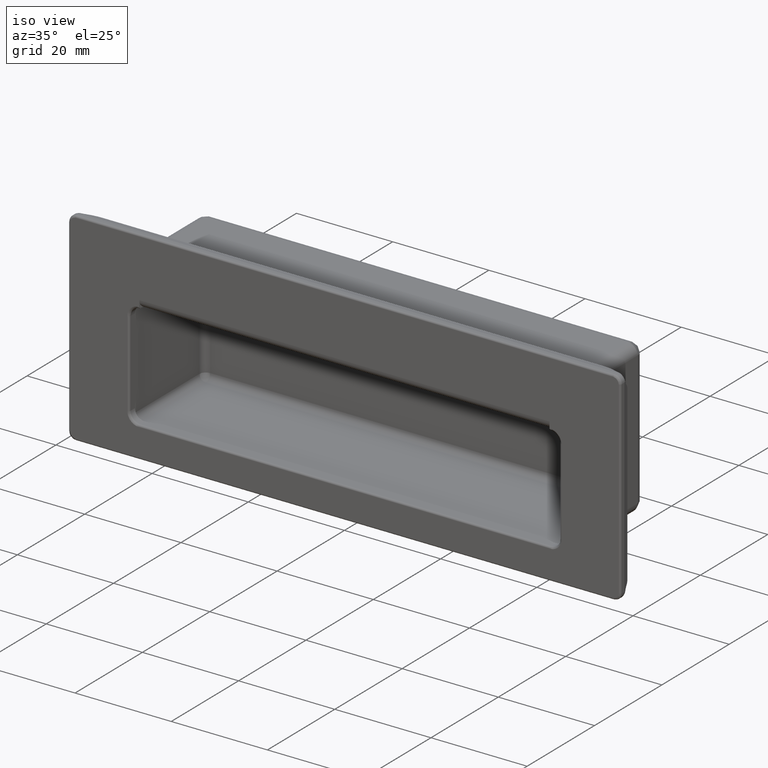
[diagram: clean part render]
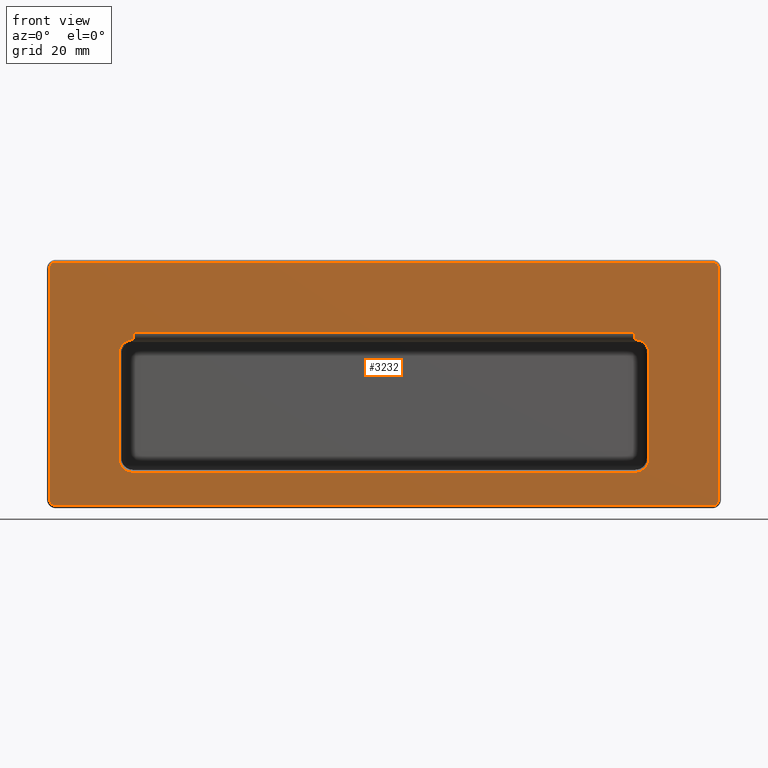
[diagram: tour spotlight — one face highlighted and labeled with its STEP entity id]
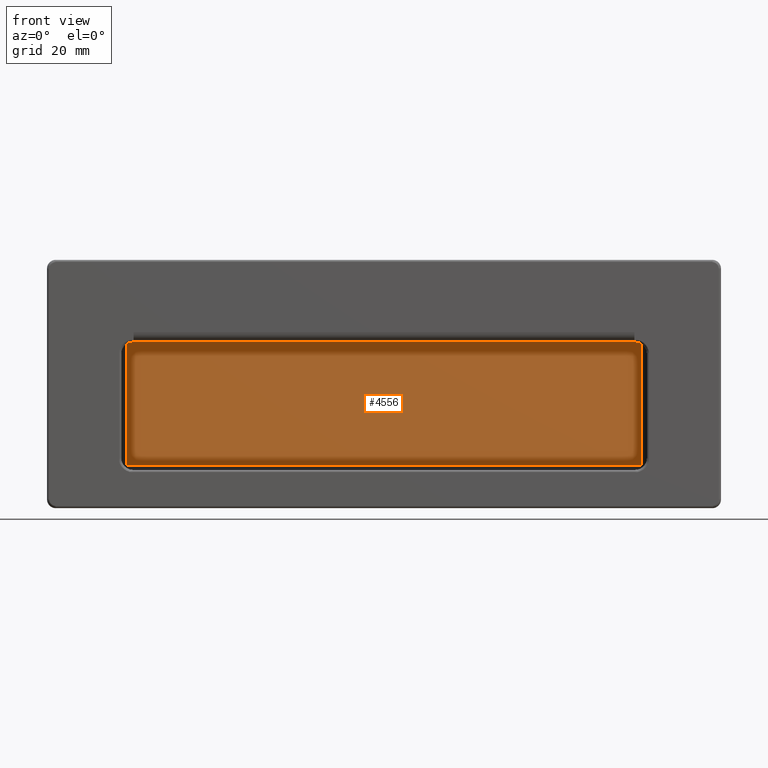
[diagram: tour spotlight — one face highlighted and labeled with its STEP entity id]
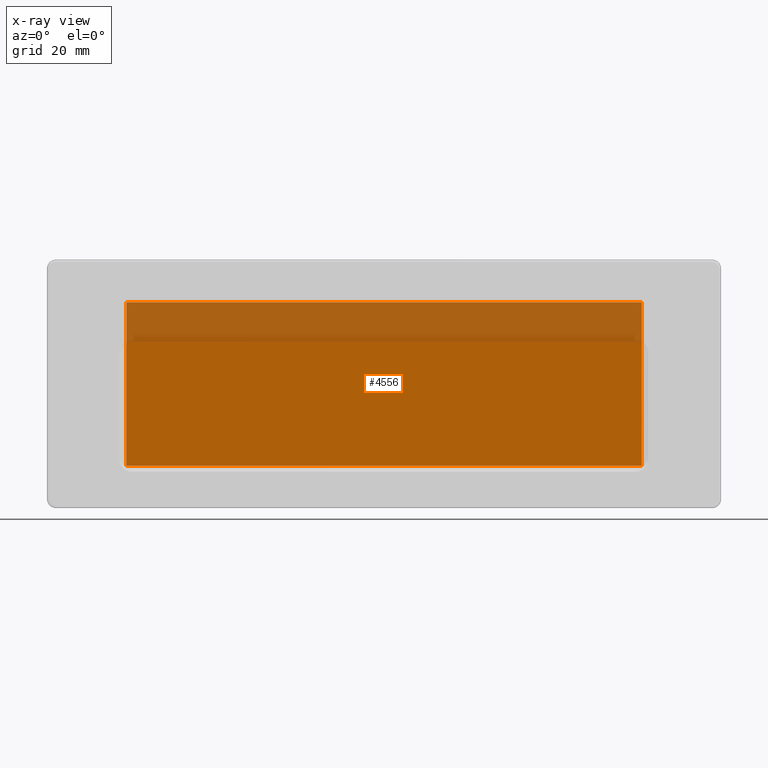
[diagram: x-ray of the same camera — body ghosted, this tour face saturated]
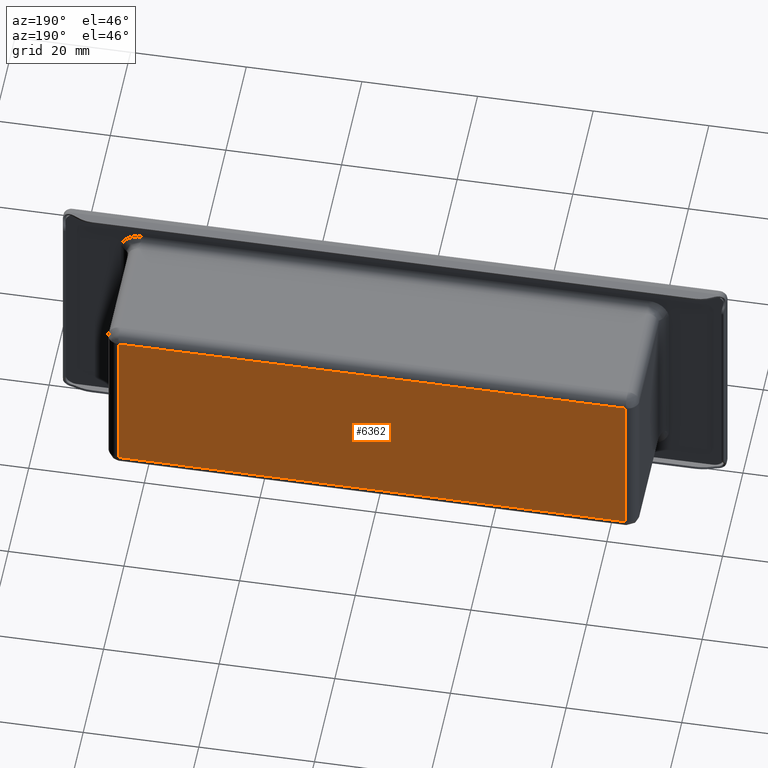
[diagram: tour spotlight — one face highlighted and labeled with its STEP entity id]
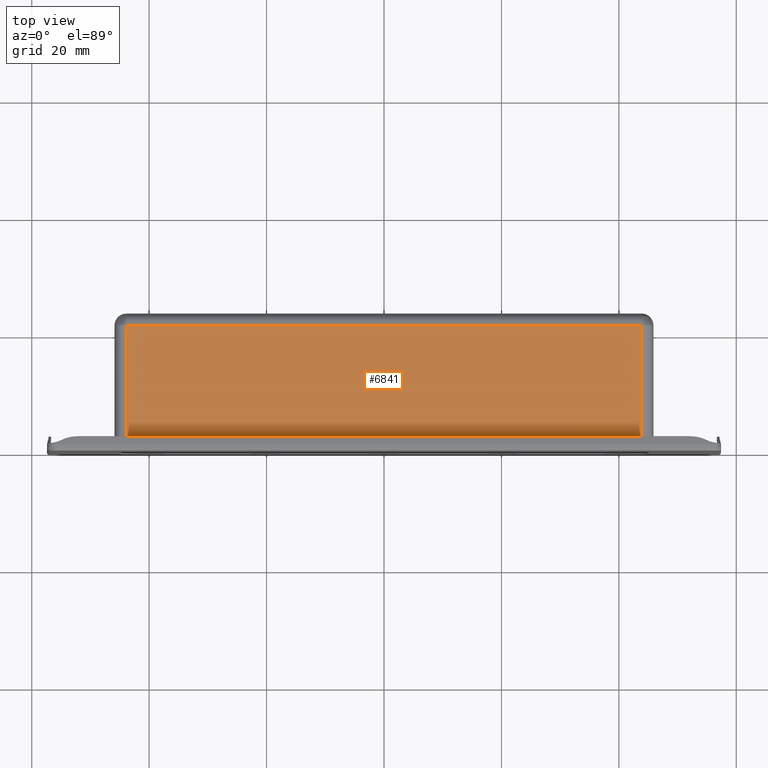
[diagram: tour spotlight — one face highlighted and labeled with its STEP entity id]
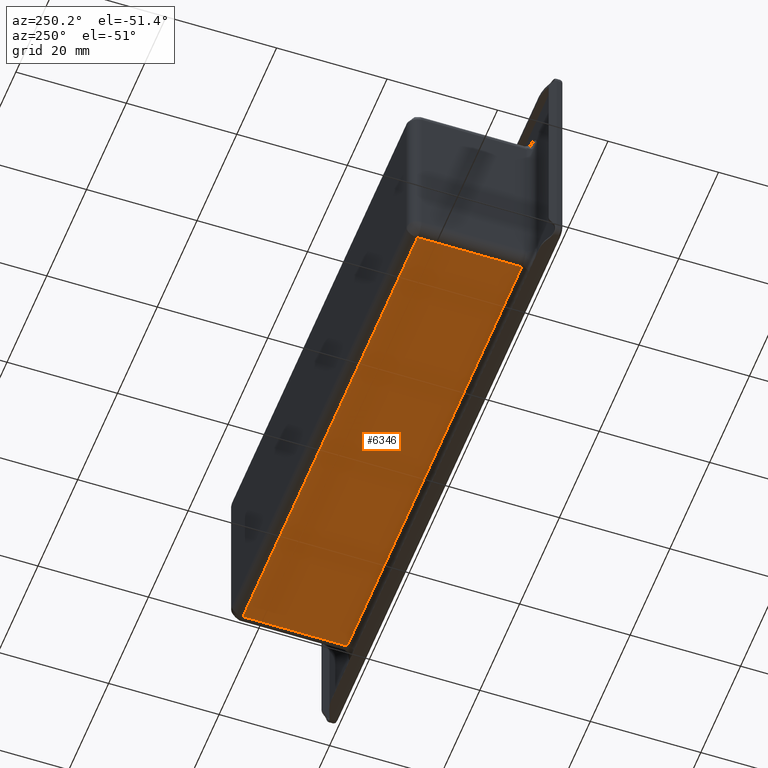
[diagram: tour spotlight — one face highlighted and labeled with its STEP entity id]
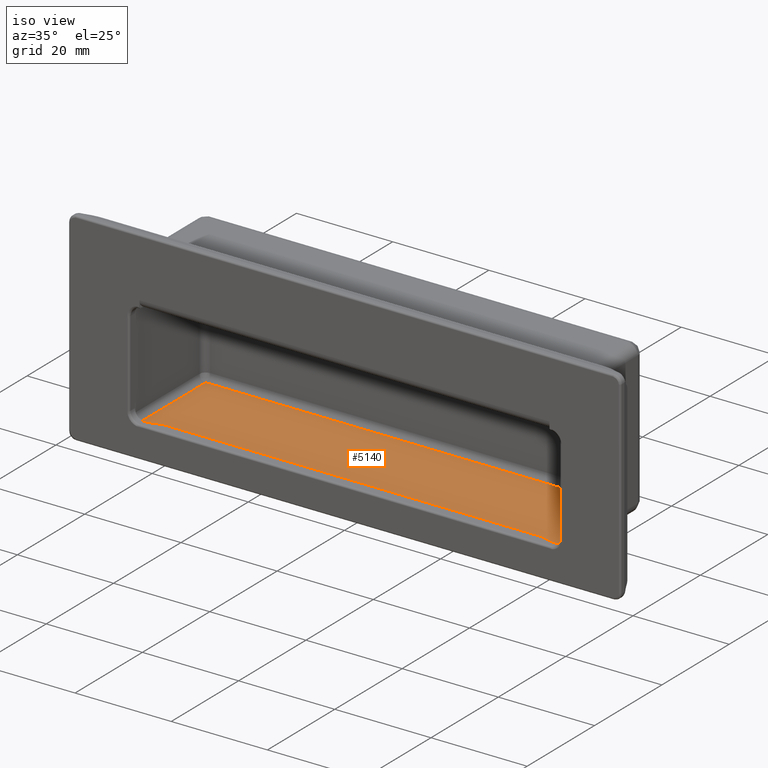
[diagram: tour spotlight — one face highlighted and labeled with its STEP entity id]
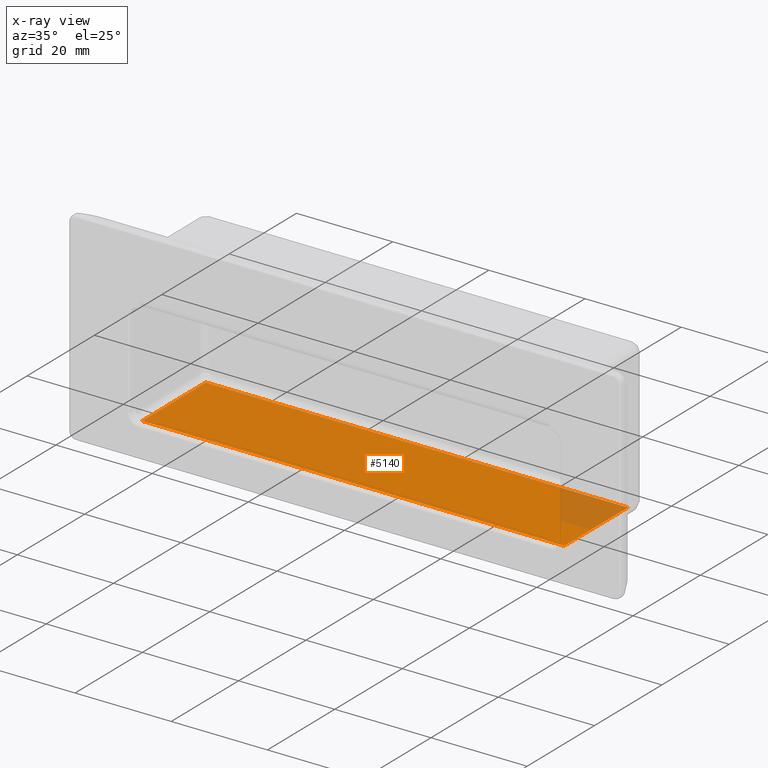
[diagram: x-ray of the same camera — body ghosted, this tour face saturated]
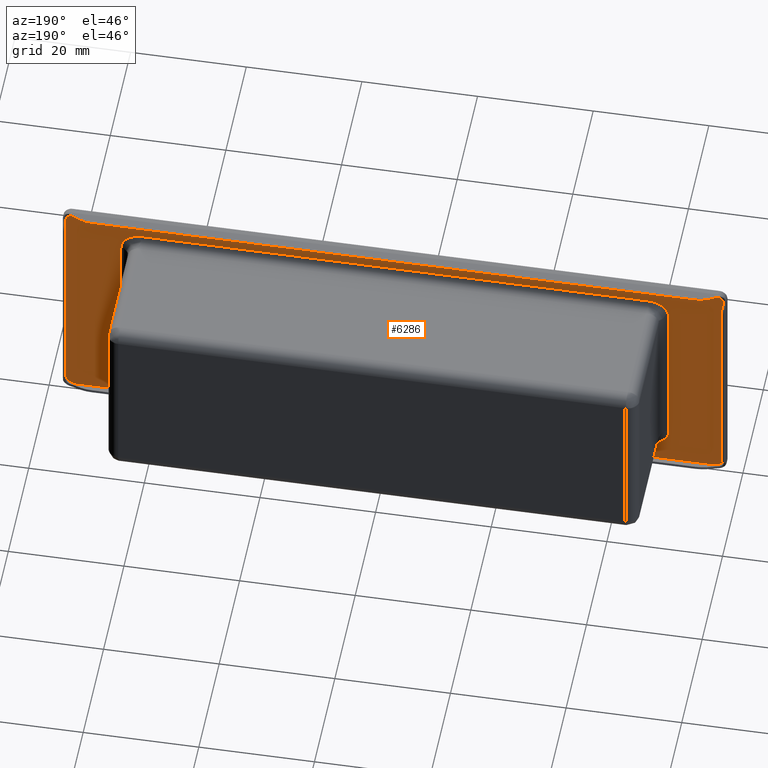
[diagram: tour spotlight — one face highlighted and labeled with its STEP entity id]
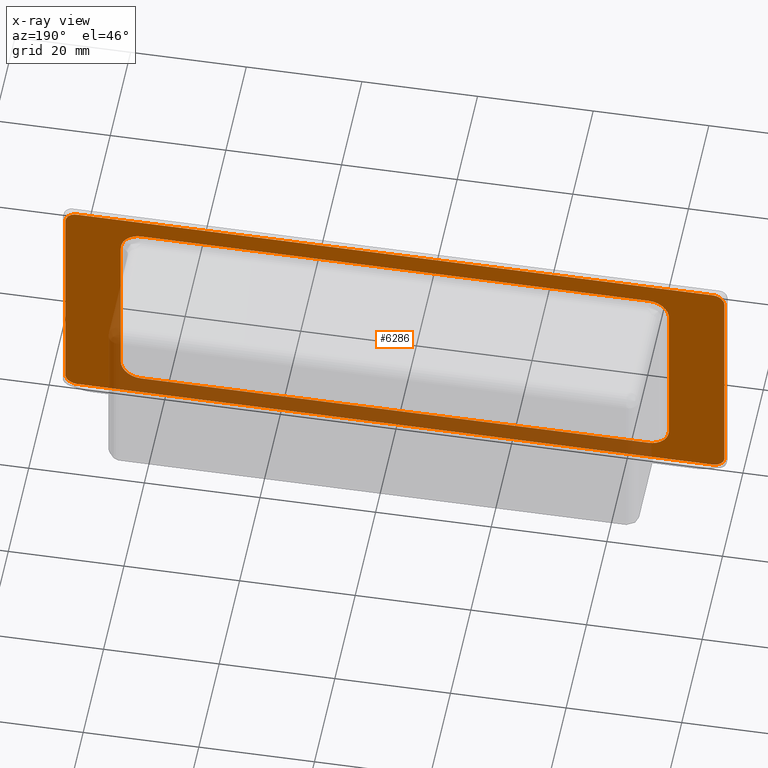
[diagram: x-ray of the same camera — body ghosted, this tour face saturated]
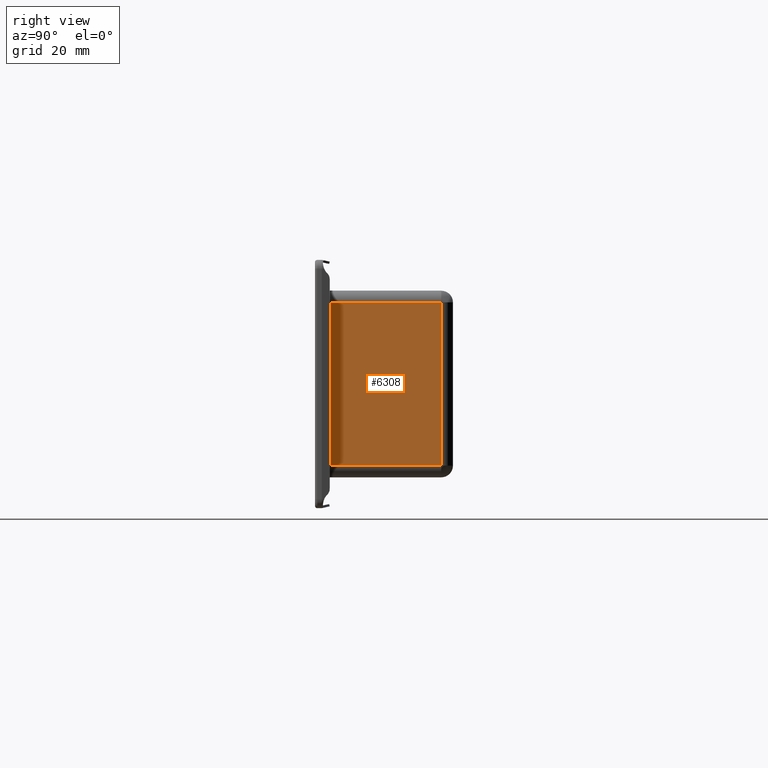
[diagram: tour spotlight — one face highlighted and labeled with its STEP entity id]
A machine part: a face-by-face anatomy tour. The part has 177 B-rep faces; the first image is the clean iso view, then the 8 largest visible faces are spotlighted one at a time (largest first), each with its STEP entity span.

Face 1 — front view, entity #3232. In plain terms, the highlighted face is a freeform B-spline surface patch.
Definition (entity closure, byte-faithful):
#2022=CARTESIAN_POINT('',(55.899999999999999,0.0,-20.750000000000000));
#2023=VERTEX_POINT('',#2022);
#2035=CARTESIAN_POINT('',(57.0,0.0,-19.649999999999999));
#2036=VERTEX_POINT('',#2035);
#2047=CARTESIAN_POINT('',(55.899999999999999,0.0,-20.750000000000000));
#2048=CARTESIAN_POINT('',(56.089117631571312,0.0,-20.750433314237011));
#2049=CARTESIAN_POINT('',(56.367540630138187,0.0,-20.676269434872349));
#2050=CARTESIAN_POINT('',(56.717278364057449,0.0,-20.416964149721991));
#2051=CARTESIAN_POINT('',(56.940908035953150,0.0,-20.090912642356511));
#2052=CARTESIAN_POINT('',(57.000138124218083,0.0,-19.793999895413432));
#2053=CARTESIAN_POINT('',(57.0,0.0,-19.649999999999999));
#2054=B_SPLINE_CURVE_WITH_KNOTS('',3,(#2047,#2048,#2049,#2050,#2051,#2052,#2053),.UNSPECIFIED.,.F.,.U.,(4,1,1,1,4),(0.000000308004281,0.566985345708550,0.837006731466796,1.295939566123076,1.727919318831558),.UNSPECIFIED.);
#2055=EDGE_CURVE('',#2023,#2036,#2054,.T.);
#2074=CARTESIAN_POINT('',(57.0,0.0,19.649999999999999));
#2075=VERTEX_POINT('',#2074);
#2085=CARTESIAN_POINT('',(57.0,0.0,-19.649999999999999));
#2086=CARTESIAN_POINT('',(57.0,0.0,19.649999999999999));
#2087=QUASI_UNIFORM_CURVE('',1,(#2085,#2086),.UNSPECIFIED.,.F.,.U.);
#2088=EDGE_CURVE('',#2036,#2075,#2087,.T.);
#2109=CARTESIAN_POINT('',(-55.899999999999999,0.0,-20.750000000000000));
#2110=VERTEX_POINT('',#2109);
#2123=CARTESIAN_POINT('',(-55.899999999999999,0.0,-20.750000000000000));
#2124=CARTESIAN_POINT('',(55.899999999999999,0.0,-20.750000000000000));
#2125=QUASI_UNIFORM_CURVE('',1,(#2123,#2124),.UNSPECIFIED.,.F.,.U.);
#2126=EDGE_CURVE('',#2110,#2023,#2125,.T.);
#2148=CARTESIAN_POINT('',(55.899999999999999,0.0,20.750000000000000));
#2149=VERTEX_POINT('',#2148);
#2160=CARTESIAN_POINT('',(57.0,0.0,19.649999999999999));
#2161=CARTESIAN_POINT('',(57.000307429897362,0.0,19.821064582480648));
#2162=CARTESIAN_POINT('',(56.935706552464957,0.0,20.090708563502339));
#2163=CARTESIAN_POINT('',(56.704489525484838,0.0,20.427758687049550));
#2164=CARTESIAN_POINT('',(56.376753224023197,0.0,20.677182233565819));
#2165=CARTESIAN_POINT('',(56.071033860356458,0.0,20.750299359066151));
#2166=CARTESIAN_POINT('',(55.899999999999999,0.0,20.750000000000000));
#2167=B_SPLINE_CURVE_WITH_KNOTS('',3,(#2160,#2161,#2162,#2163,#2164,#2165,#2166),.UNSPECIFIED.,.F.,.U.,(4,1,1,1,4),(0.000000307997191,0.512985134664143,0.809984527379207,1.214935017076155,1.727919318831545),.UNSPECIFIED.);
#2168=EDGE_CURVE('',#2075,#2149,#2167,.T.);
#2192=CARTESIAN_POINT('',(-57.0,0.0,-19.649999999999999));
#2193=VERTEX_POINT('',#2192);
#2205=CARTESIAN_POINT('',(-57.0,0.0,-19.649999999999999));
#2206=CARTESIAN_POINT('',(-57.000307429897362,0.0,-19.821064582480648));
#2207=CARTESIAN_POINT('',(-56.935706552464957,0.0,-20.090708563502339));
#2208=CARTESIAN_POINT('',(-56.704489525484838,0.0,-20.427758687049550));
#2209=CARTESIAN_POINT('',(-56.376753224023197,0.0,-20.677182233565819));
#2210=CARTESIAN_POINT('',(-56.071033860356458,0.0,-20.750299359066151));
#2211=CARTESIAN_POINT('',(-55.899999999999999,0.0,-20.750000000000000));
#2212=B_SPLINE_CURVE_WITH_KNOTS('',3,(#2205,#2206,#2207,#2208,#2209,#2210,#2211),.UNSPECIFIED.,.F.,.U.,(4,1,1,1,4),(0.000000307997191,0.512985134664143,0.809984527379207,1.214935017076155,1.727919318831545),.UNSPECIFIED.);
#2213=EDGE_CURVE('',#2193,#2110,#2212,.T.);
#2232=CARTESIAN_POINT('',(-55.899999999999999,0.0,20.750000000000000));
#2233=VERTEX_POINT('',#2232);
#2244=CARTESIAN_POINT('',(55.899999999999999,0.0,20.750000000000000));
#2245=CARTESIAN_POINT('',(-55.899999999999999,0.0,20.750000000000000));
#2246=QUASI_UNIFORM_CURVE('',1,(#2244,#2245),.UNSPECIFIED.,.F.,.U.);
#2247=EDGE_CURVE('',#2149,#2233,#2246,.T.);
#2268=CARTESIAN_POINT('',(-57.0,0.0,19.649999999999999));
#2269=VERTEX_POINT('',#2268);
#2281=CARTESIAN_POINT('',(-57.0,0.0,19.649999999999999));
#2282=CARTESIAN_POINT('',(-57.0,0.0,-19.649999999999999));
#2283=QUASI_UNIFORM_CURVE('',1,(#2281,#2282),.UNSPECIFIED.,.F.,.U.);
#2284=EDGE_CURVE('',#2269,#2193,#2283,.T.);
#2309=CARTESIAN_POINT('',(-55.899999999999999,0.0,20.750000000000000));
#2310=CARTESIAN_POINT('',(-56.089117631571312,0.0,20.750433314237011));
#2311=CARTESIAN_POINT('',(-56.367540630138187,0.0,20.676269434872349));
#2312=CARTESIAN_POINT('',(-56.717278364057449,0.0,20.416964149721991));
#2313=CARTESIAN_POINT('',(-56.940908035953150,0.0,20.090912642356511));
#2314=CARTESIAN_POINT('',(-57.000138124218083,0.0,19.793999895413432));
#2315=CARTESIAN_POINT('',(-57.0,0.0,19.649999999999999));
#2316=B_SPLINE_CURVE_WITH_KNOTS('',3,(#2309,#2310,#2311,#2312,#2313,#2314,#2315),.UNSPECIFIED.,.F.,.U.,(4,1,1,1,4),(0.000000308004281,0.566985345708550,0.837006731466796,1.295939566123076,1.727919318831558),.UNSPECIFIED.);
#2317=EDGE_CURVE('',#2233,#2269,#2316,.T.);
#2336=CARTESIAN_POINT('',(45.150000000000013,0.0,5.149999999999920));
#2337=VERTEX_POINT('',#2336);
#2349=CARTESIAN_POINT('',(45.150000000000013,0.0,-12.650000000000000));
#2350=VERTEX_POINT('',#2349);
#2361=CARTESIAN_POINT('',(45.150000000000013,0.0,5.149999999999920));
#2362=CARTESIAN_POINT('',(45.150000000000013,0.0,-12.650000000000000));
#2363=QUASI_UNIFORM_CURVE('',1,(#2361,#2362),.UNSPECIFIED.,.F.,.U.);
#2364=EDGE_CURVE('',#2337,#2350,#2363,.T.);
#2392=CARTESIAN_POINT('',(42.750000000000000,0.0,7.550000000000001));
#2393=VERTEX_POINT('',#2392);
#2406=CARTESIAN_POINT('',(42.750000000000000,0.0,7.550000000000001));
#2407=CARTESIAN_POINT('',(43.083888179151593,0.0,7.550449087050339));
#2408=CARTESIAN_POINT('',(43.554760978457907,0.0,7.450063618920219));
#2409=CARTESIAN_POINT('',(44.124476248130136,0.0,7.136352301698945));
#2410=CARTESIAN_POINT('',(44.502396790240873,0.0,6.818425584114021));
#2411=CARTESIAN_POINT('',(44.777476214870390,0.0,6.456814715542434));
#2412=CARTESIAN_POINT('',(45.058454921049062,0.0,5.915512899174033));
#2413=CARTESIAN_POINT('',(45.150434163107839,0.0,5.483890351393451));
#2414=CARTESIAN_POINT('',(45.150000000000013,0.0,5.149999999999920));
#2415=B_SPLINE_CURVE_WITH_KNOTS('',3,(#2406,#2407,#2408,#2409,#2410,#2411,#2412,#2413,#2414),.UNSPECIFIED.,.F.,.U.,(4,1,1,1,1,1,4),(0.000000206949084,1.001409892601652,1.413779364648870,1.943881405310106,2.474054548191452,2.768596356997216,3.770005786415681),.UNSPECIFIED.);
#2416=EDGE_CURVE('',#2393,#2337,#2415,.T.);
#2435=CARTESIAN_POINT('',(42.636537860952302,0.0,7.550000000000001));
#2436=VERTEX_POINT('',#2435);
#2449=CARTESIAN_POINT('',(42.636537860952302,0.0,7.550000000000001));
#2450=CARTESIAN_POINT('',(42.750000000000000,0.0,7.550000000000001));
#2451=QUASI_UNIFORM_CURVE('',1,(#2449,#2450),.UNSPECIFIED.,.F.,.U.);
#2452=EDGE_CURVE('',#2436,#2393,#2451,.T.);
#2552=CARTESIAN_POINT('',(42.636537860952302,-1.127570E-014,8.850000000000000));
#2553=VERTEX_POINT('',#2552);
#2554=CARTESIAN_POINT('',(42.636537860952302,-1.127570E-014,8.850000000000000));
#2555=CARTESIAN_POINT('',(42.636537860952302,0.0,7.550000000000001));
#2556=QUASI_UNIFORM_CURVE('',1,(#2554,#2555),.UNSPECIFIED.,.F.,.U.);
#2557=EDGE_CURVE('',#2553,#2436,#2556,.T.);
#3136=CARTESIAN_POINT('',(-62.694299779045892,0.0,22.822924919564951));
#3137=CARTESIAN_POINT('',(62.694302836764173,0.0,22.822924919564951));
#3138=CARTESIAN_POINT('',(-62.694299779045892,0.0,-22.822926032681689));
#3139=CARTESIAN_POINT('',(62.694302836764173,0.0,-22.822926032681689));
#3140=B_SPLINE_SURFACE_WITH_KNOTS('',1,1,((#3136,#3138),(#3137,#3139)),.UNSPECIFIED.,.F.,.F.,.U.,(2,2),(2,2),(0.0,125.388602615810000),(0.0,45.645850952246633),.UNSPECIFIED.);
#3141=ORIENTED_EDGE('',*,*,#2126,.T.);
#3142=ORIENTED_EDGE('',*,*,#2055,.T.);
#3143=ORIENTED_EDGE('',*,*,#2088,.T.);
#3144=ORIENTED_EDGE('',*,*,#2168,.T.);
#3145=ORIENTED_EDGE('',*,*,#2247,.T.);
#3146=ORIENTED_EDGE('',*,*,#2317,.T.);
#3147=ORIENTED_EDGE('',*,*,#2284,.T.);
#3148=ORIENTED_EDGE('',*,*,#2213,.T.);
#3149=EDGE_LOOP('',(#3141,#3142,#3143,#3144,#3145,#3146,#3147,#3148));
#3150=FACE_OUTER_BOUND('',#3149,.T.);
#3151=ORIENTED_EDGE('',*,*,#2557,.T.);
#3152=ORIENTED_EDGE('',*,*,#2452,.T.);
#3153=ORIENTED_EDGE('',*,*,#2416,.T.);
#3154=ORIENTED_EDGE('',*,*,#2364,.T.);
#3155=CARTESIAN_POINT('',(42.750000000000000,0.0,-15.050000000000001));
#3156=VERTEX_POINT('',#3155);
#3157=CARTESIAN_POINT('',(45.150000000000013,0.0,-12.650000000000000));
#3158=CARTESIAN_POINT('',(45.150057278169257,0.0,-12.865983233550850));
#3159=CARTESIAN_POINT('',(45.086018589221823,0.0,-13.337236237808970));
#3160=CARTESIAN_POINT('',(44.812807835489430,0.0,-13.933832757705670));
#3161=CARTESIAN_POINT('',(44.380273097977167,0.0,-14.447768490993910));
#3162=CARTESIAN_POINT('',(43.893485623141402,0.0,-14.790668246477280));
#3163=CARTESIAN_POINT('',(43.319385169855373,0.0,-15.003941891435019));
#3164=CARTESIAN_POINT('',(42.946350230594390,0.0,-15.050052993049100));
#3165=CARTESIAN_POINT('',(42.750000000000000,0.0,-15.050000000000001));
#3166=B_SPLINE_CURVE_WITH_KNOTS('',3,(#3157,#3158,#3159,#3160,#3161,#3162,#3163,#3164,#3165),.UNSPECIFIED.,.F.,.U.,(4,1,1,1,1,1,4),(0.000000206946736,0.647966817479248,1.413779364647346,1.943881405308994,2.650774993252503,3.180954233771765,3.770005786415538),.UNSPECIFIED.);
#3167=EDGE_CURVE('',#2350,#3156,#3166,.T.);
#3168=ORIENTED_EDGE('',*,*,#3167,.T.);
#3169=CARTESIAN_POINT('',(-42.750000000000000,0.0,-15.050000000000001));
#3170=VERTEX_POINT('',#3169);
#3171=CARTESIAN_POINT('',(42.750000000000000,0.0,-15.050000000000001));
#3172=CARTESIAN_POINT('',(-42.750000000000000,0.0,-15.050000000000001));
#3173=QUASI_UNIFORM_CURVE('',1,(#3171,#3172),.UNSPECIFIED.,.F.,.U.);
#3174=EDGE_CURVE('',#3156,#3170,#3173,.T.);
#3175=ORIENTED_EDGE('',*,*,#3174,.T.);
#3176=CARTESIAN_POINT('',(-45.150000000000013,0.0,-12.650000000000000));
#3177=VERTEX_POINT('',#3176);
#3178=CARTESIAN_POINT('',(-42.750000000000000,0.0,-15.050000000000001));
#3179=CARTESIAN_POINT('',(-43.005270288775009,0.0,-15.050137863273610));
#3180=CARTESIAN_POINT('',(-43.417484552693310,0.0,-14.983550172952020));
#3181=CARTESIAN_POINT('',(-44.066960694307788,0.0,-14.695851286924210));
#3182=CARTESIAN_POINT('',(-44.525320720960558,0.0,-14.310243852239100));
#3183=CARTESIAN_POINT('',(-44.859630336709678,0.0,-13.822520743904841));
#3184=CARTESIAN_POINT('',(-45.083577240362310,0.0,-13.317508491568610));
#3185=CARTESIAN_POINT('',(-45.150137921830229,0.0,-12.905269729238141));
#3186=CARTESIAN_POINT('',(-45.150000000000013,0.0,-12.650000000000000));
#3187=B_SPLINE_CURVE_WITH_KNOTS('',3,(#3178,#3179,#3180,#3181,#3182,#3183,#3184,#3185,#3186),.UNSPECIFIED.,.F.,.U.,(4,1,1,1,1,1,4),(0.000000206956050,0.765772273268192,1.237033684539001,2.120594634177164,2.532971336028534,3.004233788710537,3.770005786415489),.UNSPECIFIED.);
#3188=EDGE_CURVE('',#3170,#3177,#3187,.T.);
#3189=ORIENTED_EDGE('',*,*,#3188,.T.);
#3190=CARTESIAN_POINT('',(-45.150000000000013,0.0,5.149999999999920));
#3191=VERTEX_POINT('',#3190);
#3192=CARTESIAN_POINT('',(-45.150000000000013,0.0,-12.650000000000000));
#3193=CARTESIAN_POINT('',(-45.150000000000013,0.0,5.149999999999920));
#3194=QUASI_UNIFORM_CURVE('',1,(#3192,#3193),.UNSPECIFIED.,.F.,.U.);
#3195=EDGE_CURVE('',#3177,#3191,#3194,.T.);
#3196=ORIENTED_EDGE('',*,*,#3195,.T.);
#3197=CARTESIAN_POINT('',(-42.750000000000000,0.0,7.550000000000001));
#3198=VERTEX_POINT('',#3197);
#3199=CARTESIAN_POINT('',(-45.150000000000013,0.0,5.149999999999920));
#3200=CARTESIAN_POINT('',(-45.150079532060708,0.0,5.365991955626435));
#3201=CARTESIAN_POINT('',(-45.093940958756718,0.0,5.778280714205271));
#3202=CARTESIAN_POINT('',(-44.844196472266027,0.0,6.381466676213430));
#3203=CARTESIAN_POINT('',(-44.429035018335199,0.0,6.913527889060830));
#3204=CARTESIAN_POINT('',(-43.909695135200309,0.0,7.279208028642229));
#3205=CARTESIAN_POINT('',(-43.339014345782722,0.0,7.499272350289648));
#3206=CARTESIAN_POINT('',(-42.965991690525932,0.0,7.550077866277746));
#3207=CARTESIAN_POINT('',(-42.750000000000000,0.0,7.550000000000001));
#3208=B_SPLINE_CURVE_WITH_KNOTS('',3,(#3199,#3200,#3201,#3202,#3203,#3204,#3205,#3206,#3207),.UNSPECIFIED.,.F.,.U.,(4,1,1,1,1,1,4),(0.000000206952319,0.647966817483349,1.237033684536081,1.943881405310542,2.650774993253251,3.122037445934986,3.770005786415628),.UNSPECIFIED.);
#3209=EDGE_CURVE('',#3191,#3198,#3208,.T.);
#3210=ORIENTED_EDGE('',*,*,#3209,.T.);
#3211=CARTESIAN_POINT('',(-42.636537860952302,0.0,7.550000000000001));
#3212=VERTEX_POINT('',#3211);
#3213=CARTESIAN_POINT('',(-42.750000000000000,0.0,7.550000000000001));
#3214=CARTESIAN_POINT('',(-42.636537860952302,0.0,7.550000000000001));
#3215=QUASI_UNIFORM_CURVE('',1,(#3213,#3214),.UNSPECIFIED.,.F.,.U.);
#3216=EDGE_CURVE('',#3198,#3212,#3215,.T.);
#3217=ORIENTED_EDGE('',*,*,#3216,.T.);
#3218=CARTESIAN_POINT('',(-42.636537860952302,-1.127570E-014,8.850000000000000));
#3219=VERTEX_POINT('',#3218);
#3220=CARTESIAN_POINT('',(-42.636537860952302,-1.127570E-014,8.850000000000000));
#3221=CARTESIAN_POINT('',(-42.636537860952302,0.0,7.550000000000001));
#3222=QUASI_UNIFORM_CURVE('',1,(#3220,#3221),.UNSPECIFIED.,.F.,.U.);
#3223=EDGE_CURVE('',#3219,#3212,#3222,.T.);
#3224=ORIENTED_EDGE('',*,*,#3223,.F.);
#3225=CARTESIAN_POINT('',(42.636537860952302,-1.127570E-014,8.850000000000000));
#3226=CARTESIAN_POINT('',(-42.636537860952302,-1.127570E-014,8.850000000000000));
#3227=QUASI_UNIFORM_CURVE('',1,(#3225,#3226),.UNSPECIFIED.,.F.,.U.);
#3228=EDGE_CURVE('',#2553,#3219,#3227,.T.);
#3229=ORIENTED_EDGE('',*,*,#3228,.F.);
#3230=EDGE_LOOP('',(#3151,#3152,#3153,#3154,#3168,#3175,#3189,#3196,#3210,#3217,#3224,#3229));
#3231=FACE_BOUND('',#3230,.T.);
#3232=ADVANCED_FACE('',(#3150,#3231),#3140,.F.);

Face 2 — front view, entity #4556. An x-ray twin of the same camera follows (body ghosted, this face saturated) — the face is partly hidden behind the body. In plain terms, the highlighted face is a freeform B-spline surface patch.
Definition (entity closure, byte-faithful):
#4521=CARTESIAN_POINT('',(-48.285609829826562,22.800000000000001,15.288609946118070));
#4522=CARTESIAN_POINT('',(-48.285609829826562,22.800000000000001,-15.288610691772520));
#4523=CARTESIAN_POINT('',(48.285612184806077,22.800000000000001,15.288609946118070));
#4524=CARTESIAN_POINT('',(48.285612184806077,22.800000000000001,-15.288610691772520));
#4525=B_SPLINE_SURFACE_WITH_KNOTS('',1,1,((#4521,#4523),(#4522,#4524)),.UNSPECIFIED.,.F.,.F.,.U.,(2,2),(2,2),(0.0,30.577220637890591),(0.0,96.571222014632639),.UNSPECIFIED.);
#4526=CARTESIAN_POINT('',(-43.899999999999999,22.800000000000001,13.899999999999860));
#4527=VERTEX_POINT('',#4526);
#4528=CARTESIAN_POINT('',(-43.899999999999999,22.800000000000001,-13.900000000000199));
#4529=VERTEX_POINT('',#4528);
#4530=CARTESIAN_POINT('',(-43.899999999999999,22.800000000000001,13.899999999999860));
#4531=CARTESIAN_POINT('',(-43.899999999999999,22.800000000000001,-13.900000000000199));
#4532=QUASI_UNIFORM_CURVE('',1,(#4530,#4531),.UNSPECIFIED.,.F.,.U.);
#4533=EDGE_CURVE('',#4527,#4529,#4532,.T.);
#4534=ORIENTED_EDGE('',*,*,#4533,.T.);
#4535=CARTESIAN_POINT('',(43.899999999999999,22.800000000000001,-13.900000000000199));
#4536=VERTEX_POINT('',#4535);
#4537=CARTESIAN_POINT('',(-43.899999999999999,22.800000000000001,-13.900000000000199));
#4538=CARTESIAN_POINT('',(43.899999999999999,22.800000000000001,-13.900000000000199));
#4539=QUASI_UNIFORM_CURVE('',1,(#4537,#4538),.UNSPECIFIED.,.F.,.U.);
#4540=EDGE_CURVE('',#4529,#4536,#4539,.T.);
#4541=ORIENTED_EDGE('',*,*,#4540,.T.);
#4542=CARTESIAN_POINT('',(43.899999999999999,22.800000000000001,13.899999999999860));
#4543=VERTEX_POINT('',#4542);
#4544=CARTESIAN_POINT('',(43.899999999999999,22.800000000000001,-13.900000000000199));
#4545=CARTESIAN_POINT('',(43.899999999999999,22.800000000000001,13.899999999999860));
#4546=QUASI_UNIFORM_CURVE('',1,(#4544,#4545),.UNSPECIFIED.,.F.,.U.);
#4547=EDGE_CURVE('',#4536,#4543,#4546,.T.);
#4548=ORIENTED_EDGE('',*,*,#4547,.T.);
#4549=CARTESIAN_POINT('',(43.899999999999999,22.800000000000001,13.899999999999860));
#4550=CARTESIAN_POINT('',(-43.899999999999999,22.800000000000001,13.899999999999860));
#4551=QUASI_UNIFORM_CURVE('',1,(#4549,#4550),.UNSPECIFIED.,.F.,.U.);
#4552=EDGE_CURVE('',#4543,#4527,#4551,.T.);
#4553=ORIENTED_EDGE('',*,*,#4552,.T.);
#4554=EDGE_LOOP('',(#4534,#4541,#4548,#4553));
#4555=FACE_OUTER_BOUND('',#4554,.T.);
#4556=ADVANCED_FACE('',(#4555),#4525,.T.);

Face 3 — auxiliary view, entity #6362. In plain terms, the highlighted face is a freeform B-spline surface patch.
Definition (entity closure, byte-faithful):
#5755=CARTESIAN_POINT('',(-43.899999999999999,23.500000000000000,-13.900000000000199));
#5756=VERTEX_POINT('',#5755);
#5778=CARTESIAN_POINT('',(-43.899999999999999,23.500000000000000,13.899999999999860));
#5779=VERTEX_POINT('',#5778);
#5792=CARTESIAN_POINT('',(-43.899999999999999,23.500000000000000,-13.900000000000199));
#5793=CARTESIAN_POINT('',(-43.899999999999999,23.500000000000000,13.899999999999860));
#5794=QUASI_UNIFORM_CURVE('',1,(#5792,#5793),.UNSPECIFIED.,.F.,.U.);
#5795=EDGE_CURVE('',#5756,#5779,#5794,.T.);
#5868=CARTESIAN_POINT('',(43.899999999999999,23.500000000000000,-13.900000000000199));
#5869=VERTEX_POINT('',#5868);
#5882=CARTESIAN_POINT('',(43.899999999999999,23.500000000000000,13.899999999999860));
#5883=VERTEX_POINT('',#5882);
#5884=CARTESIAN_POINT('',(43.899999999999999,23.500000000000000,13.899999999999860));
#5885=CARTESIAN_POINT('',(43.899999999999999,23.500000000000000,-13.900000000000199));
#5886=QUASI_UNIFORM_CURVE('',1,(#5884,#5885),.UNSPECIFIED.,.F.,.U.);
#5887=EDGE_CURVE('',#5883,#5869,#5886,.T.);
#5944=CARTESIAN_POINT('',(43.899999999999999,23.500000000000000,-13.900000000000199));
#5945=CARTESIAN_POINT('',(-43.899999999999999,23.500000000000000,-13.900000000000199));
#5946=QUASI_UNIFORM_CURVE('',1,(#5944,#5945),.UNSPECIFIED.,.F.,.U.);
#5947=EDGE_CURVE('',#5869,#5756,#5946,.T.);
#6347=CARTESIAN_POINT('',(-48.285609829826562,23.500000000000000,15.288609946118070));
#6348=CARTESIAN_POINT('',(-48.285609829826562,23.500000000000000,-15.288610691772520));
#6349=CARTESIAN_POINT('',(48.285612184806077,23.500000000000000,15.288609946118070));
#6350=CARTESIAN_POINT('',(48.285612184806077,23.500000000000000,-15.288610691772520));
#6351=B_SPLINE_SURFACE_WITH_KNOTS('',1,1,((#6347,#6349),(#6348,#6350)),.UNSPECIFIED.,.F.,.F.,.U.,(2,2),(2,2),(0.0,30.577220637890591),(0.0,96.571222014632639),.UNSPECIFIED.);
#6352=ORIENTED_EDGE('',*,*,#5795,.T.);
#6353=CARTESIAN_POINT('',(-43.899999999999999,23.500000000000000,13.899999999999860));
#6354=CARTESIAN_POINT('',(43.899999999999999,23.500000000000000,13.899999999999860));
#6355=QUASI_UNIFORM_CURVE('',1,(#6353,#6354),.UNSPECIFIED.,.F.,.U.);
#6356=EDGE_CURVE('',#5779,#5883,#6355,.T.);
#6357=ORIENTED_EDGE('',*,*,#6356,.T.);
#6358=ORIENTED_EDGE('',*,*,#5887,.T.);
#6359=ORIENTED_EDGE('',*,*,#5947,.T.);
#6360=EDGE_LOOP('',(#6352,#6357,#6358,#6359));
#6361=FACE_OUTER_BOUND('',#6360,.T.);
#6362=ADVANCED_FACE('',(#6361),#6351,.F.);

Face 4 — top view, entity #6841. In plain terms, the highlighted face is a freeform B-spline surface patch.
Definition (entity closure, byte-faithful):
#6486=CARTESIAN_POINT('',(43.899999999999999,2.600000000000000,15.900000000000000));
#6487=VERTEX_POINT('',#6486);
#6563=CARTESIAN_POINT('',(-43.899999999999999,2.600000000000000,15.900000000000000));
#6564=VERTEX_POINT('',#6563);
#6578=CARTESIAN_POINT('',(-43.899999999999999,2.600000000000000,15.900000000000000));
#6579=CARTESIAN_POINT('',(43.899999999999999,2.600000000000000,15.900000000000000));
#6580=QUASI_UNIFORM_CURVE('',1,(#6578,#6579),.UNSPECIFIED.,.F.,.U.);
#6581=EDGE_CURVE('',#6564,#6487,#6580,.T.);
#6667=CARTESIAN_POINT('',(-43.899999999999999,21.500000000000000,15.900000000000000));
#6668=VERTEX_POINT('',#6667);
#6669=CARTESIAN_POINT('',(-43.899999999999999,21.500000000000000,15.900000000000000));
#6670=CARTESIAN_POINT('',(-43.899999999999999,2.600000000000000,15.900000000000000));
#6671=QUASI_UNIFORM_CURVE('',1,(#6669,#6670),.UNSPECIFIED.,.F.,.U.);
#6672=EDGE_CURVE('',#6668,#6564,#6671,.T.);
#6742=CARTESIAN_POINT('',(43.899999999999999,21.500000000000000,15.900000000000000));
#6743=VERTEX_POINT('',#6742);
#6757=CARTESIAN_POINT('',(43.899999999999999,21.500000000000000,15.900000000000000));
#6758=CARTESIAN_POINT('',(-43.899999999999999,21.500000000000000,15.900000000000000));
#6759=QUASI_UNIFORM_CURVE('',1,(#6757,#6758),.UNSPECIFIED.,.F.,.U.);
#6760=EDGE_CURVE('',#6743,#6668,#6759,.T.);
#6819=CARTESIAN_POINT('',(43.899999999999999,2.600000000000000,15.900000000000000));
#6820=CARTESIAN_POINT('',(43.899999999999999,21.500000000000000,15.900000000000000));
#6821=QUASI_UNIFORM_CURVE('',1,(#6819,#6820),.UNSPECIFIED.,.F.,.U.);
#6822=EDGE_CURVE('',#6487,#6743,#6821,.T.);
#6830=CARTESIAN_POINT('',(48.285609829826562,1.655945036631868,15.900000000000000));
#6831=CARTESIAN_POINT('',(-48.285612184806077,1.655945036631868,15.900000000000000));
#6832=CARTESIAN_POINT('',(48.285609829826562,22.444055470305639,15.900000000000000));
#6833=CARTESIAN_POINT('',(-48.285612184806077,22.444055470305639,15.900000000000000));
#6834=B_SPLINE_SURFACE_WITH_KNOTS('',1,1,((#6830,#6832),(#6831,#6833)),.UNSPECIFIED.,.F.,.F.,.U.,(2,2),(2,2),(0.0,96.571222014632639),(0.0,20.788110433673769),.UNSPECIFIED.);
#6835=ORIENTED_EDGE('',*,*,#6672,.T.);
#6836=ORIENTED_EDGE('',*,*,#6581,.T.);
#6837=ORIENTED_EDGE('',*,*,#6822,.T.);
#6838=ORIENTED_EDGE('',*,*,#6760,.T.);
#6839=EDGE_LOOP('',(#6835,#6836,#6837,#6838));
#6840=FACE_OUTER_BOUND('',#6839,.T.);
#6841=ADVANCED_FACE('',(#6840),#6834,.F.);

Face 5 — auxiliary view, entity #6346. In plain terms, the highlighted face is a freeform B-spline surface patch.
Definition (entity closure, byte-faithful):
#5824=CARTESIAN_POINT('',(-43.899999999999999,21.500000000000000,-15.900000000000000));
#5825=VERTEX_POINT('',#5824);
#5925=CARTESIAN_POINT('',(43.899999999999999,21.500000000000000,-15.900000000000000));
#5926=VERTEX_POINT('',#5925);
#5938=CARTESIAN_POINT('',(-43.899999999999999,21.500000000000000,-15.900000000000000));
#5939=CARTESIAN_POINT('',(43.899999999999999,21.500000000000000,-15.900000000000000));
#5940=QUASI_UNIFORM_CURVE('',1,(#5938,#5939),.UNSPECIFIED.,.F.,.U.);
#5941=EDGE_CURVE('',#5825,#5926,#5940,.T.);
#5966=CARTESIAN_POINT('',(-43.899999999999999,2.600000000000000,-15.900000000000000));
#5967=VERTEX_POINT('',#5966);
#5968=CARTESIAN_POINT('',(-43.899999999999999,2.600000000000000,-15.900000000000000));
#5969=CARTESIAN_POINT('',(-43.899999999999999,21.500000000000000,-15.900000000000000));
#5970=QUASI_UNIFORM_CURVE('',1,(#5968,#5969),.UNSPECIFIED.,.F.,.U.);
#5971=EDGE_CURVE('',#5967,#5825,#5970,.T.);
#6056=CARTESIAN_POINT('',(43.899999999999999,2.600000000000000,-15.900000000000000));
#6057=VERTEX_POINT('',#6056);
#6069=CARTESIAN_POINT('',(43.899999999999999,21.500000000000000,-15.900000000000000));
#6070=CARTESIAN_POINT('',(43.899999999999999,2.600000000000000,-15.900000000000000));
#6071=QUASI_UNIFORM_CURVE('',1,(#6069,#6070),.UNSPECIFIED.,.F.,.U.);
#6072=EDGE_CURVE('',#5926,#6057,#6071,.T.);
#6331=CARTESIAN_POINT('',(-48.285609829826562,1.655945036631868,-15.900000000000000));
#6332=CARTESIAN_POINT('',(48.285612184806077,1.655945036631868,-15.900000000000000));
#6333=CARTESIAN_POINT('',(-48.285609829826562,22.444055470305639,-15.900000000000000));
#6334=CARTESIAN_POINT('',(48.285612184806077,22.444055470305639,-15.900000000000000));
#6335=B_SPLINE_SURFACE_WITH_KNOTS('',1,1,((#6331,#6333),(#6332,#6334)),.UNSPECIFIED.,.F.,.F.,.U.,(2,2),(2,2),(0.0,96.571222014632639),(0.0,20.788110433673769),.UNSPECIFIED.);
#6336=ORIENTED_EDGE('',*,*,#6072,.T.);
#6337=CARTESIAN_POINT('',(43.899999999999999,2.600000000000000,-15.900000000000000));
#6338=CARTESIAN_POINT('',(-43.899999999999999,2.600000000000000,-15.900000000000000));
#6339=QUASI_UNIFORM_CURVE('',1,(#6337,#6338),.UNSPECIFIED.,.F.,.U.);
#6340=EDGE_CURVE('',#6057,#5967,#6339,.T.);
#6341=ORIENTED_EDGE('',*,*,#6340,.T.);
#6342=ORIENTED_EDGE('',*,*,#5971,.T.);
#6343=ORIENTED_EDGE('',*,*,#5941,.T.);
#6344=EDGE_LOOP('',(#6336,#6341,#6342,#6343));
#6345=FACE_OUTER_BOUND('',#6344,.T.);
#6346=ADVANCED_FACE('',(#6345),#6335,.F.);

Face 6 — iso view, entity #5140. An x-ray twin of the same camera follows (body ghosted, this face saturated) — the face is partly hidden behind the body. In plain terms, the highlighted face is a freeform B-spline surface patch.
Definition (entity closure, byte-faithful):
#4571=CARTESIAN_POINT('',(43.899999999999999,2.600000000000035,-15.199999999999999));
#4572=VERTEX_POINT('',#4571);
#4573=CARTESIAN_POINT('',(43.899999999999999,21.500000000000000,-15.199999999999999));
#4574=VERTEX_POINT('',#4573);
#4575=CARTESIAN_POINT('',(43.899999999999999,2.600000000000035,-15.199999999999999));
#4576=CARTESIAN_POINT('',(43.899999999999999,21.500000000000000,-15.199999999999999));
#4577=QUASI_UNIFORM_CURVE('',1,(#4575,#4576),.UNSPECIFIED.,.F.,.U.);
#4578=EDGE_CURVE('',#4572,#4574,#4577,.T.);
#4719=CARTESIAN_POINT('',(-43.899999999999999,21.500000000000000,-15.199999999999999));
#4720=VERTEX_POINT('',#4719);
#4733=CARTESIAN_POINT('',(43.899999999999999,21.500000000000000,-15.199999999999999));
#4734=CARTESIAN_POINT('',(-43.899999999999999,21.500000000000000,-15.199999999999999));
#4735=QUASI_UNIFORM_CURVE('',1,(#4733,#4734),.UNSPECIFIED.,.F.,.U.);
#4736=EDGE_CURVE('',#4574,#4720,#4735,.T.);
#4987=CARTESIAN_POINT('',(-43.899999999999999,2.600000000000035,-15.199999999999999));
#4988=VERTEX_POINT('',#4987);
#5001=CARTESIAN_POINT('',(-43.899999999999999,21.500000000000000,-15.199999999999999));
#5002=CARTESIAN_POINT('',(-43.899999999999999,2.600000000000035,-15.199999999999999));
#5003=QUASI_UNIFORM_CURVE('',1,(#5001,#5002),.UNSPECIFIED.,.F.,.U.);
#5004=EDGE_CURVE('',#4720,#4988,#5003,.T.);
#5125=CARTESIAN_POINT('',(-48.285609829826562,1.655945036631903,-15.199999999999999));
#5126=CARTESIAN_POINT('',(48.285612184806077,1.655945036631903,-15.199999999999999));
#5127=CARTESIAN_POINT('',(-48.285609829826562,22.444055470305631,-15.199999999999999));
#5128=CARTESIAN_POINT('',(48.285612184806077,22.444055470305631,-15.199999999999999));
#5129=B_SPLINE_SURFACE_WITH_KNOTS('',1,1,((#5125,#5127),(#5126,#5128)),.UNSPECIFIED.,.F.,.F.,.U.,(2,2),(2,2),(0.0,96.571222014632639),(0.0,20.788110433673729),.UNSPECIFIED.);
#5130=ORIENTED_EDGE('',*,*,#5004,.T.);
#5131=CARTESIAN_POINT('',(-43.899999999999999,2.600000000000035,-15.199999999999999));
#5132=CARTESIAN_POINT('',(43.899999999999999,2.600000000000035,-15.199999999999999));
#5133=QUASI_UNIFORM_CURVE('',1,(#5131,#5132),.UNSPECIFIED.,.F.,.U.);
#5134=EDGE_CURVE('',#4988,#4572,#5133,.T.);
#5135=ORIENTED_EDGE('',*,*,#5134,.T.);
#5136=ORIENTED_EDGE('',*,*,#4578,.T.);
#5137=ORIENTED_EDGE('',*,*,#4736,.T.);
#5138=EDGE_LOOP('',(#5130,#5135,#5136,#5137));
#5139=FACE_OUTER_BOUND('',#5138,.T.);
#5140=ADVANCED_FACE('',(#5139),#5129,.T.);

Face 7 — auxiliary view, entity #6286. An x-ray twin of the same camera follows (body ghosted, this face saturated) — the face is partly hidden behind the body. In plain terms, the highlighted face is a freeform B-spline surface patch.
Definition (entity closure, byte-faithful):
#5171=CARTESIAN_POINT('',(57.0,1.100000000000022,-18.750000000000249));
#5172=VERTEX_POINT('',#5171);
#5173=CARTESIAN_POINT('',(55.0,1.100000000000022,-20.750000000000249));
#5174=VERTEX_POINT('',#5173);
#5175=CARTESIAN_POINT('',(57.0,1.100000000000022,-18.750000000000249));
#5176=CARTESIAN_POINT('',(57.000093055867488,1.100000000000022,-18.946360989123612));
#5177=CARTESIAN_POINT('',(56.951393157389788,1.100000000000024,-19.273552448645770));
#5178=CARTESIAN_POINT('',(56.768928424981453,1.100000000000020,-19.714081112412970));
#5179=CARTESIAN_POINT('',(56.545385890221567,1.100000000000022,-20.039845262778812));
#5180=CARTESIAN_POINT('',(56.192835525211322,1.100000000000021,-20.384062749016540));
#5181=CARTESIAN_POINT('',(55.687163283621572,1.100000000000029,-20.670465271880751));
#5182=CARTESIAN_POINT('',(55.229085624268691,1.100000000000017,-20.750137388740509));
#5183=CARTESIAN_POINT('',(55.0,1.100000000000022,-20.750000000000249));
#5184=B_SPLINE_CURVE_WITH_KNOTS('',3,(#5175,#5176,#5177,#5178,#5179,#5180,#5181,#5182,#5183),.UNSPECIFIED.,.F.,.U.,(4,1,1,1,1,1,4),(0.000000245821914,0.589062409937258,0.981776154986614,1.423605012104306,1.767182697788994,2.454437800194778,3.141671488692577),.UNSPECIFIED.);
#5185=EDGE_CURVE('',#5172,#5174,#5184,.T.);
#5230=CARTESIAN_POINT('',(-55.0,1.100000000000022,-20.750000000000249));
#5231=VERTEX_POINT('',#5230);
#5232=CARTESIAN_POINT('',(-57.0,1.100000000000022,-18.750000000000249));
#5233=VERTEX_POINT('',#5232);
#5234=CARTESIAN_POINT('',(-55.0,1.100000000000022,-20.750000000000249));
#5235=CARTESIAN_POINT('',(-55.294633942168069,1.100000000000020,-20.750492869711941));
#5236=CARTESIAN_POINT('',(-55.719636185327012,1.100000000000027,-20.654253380461910));
#5237=CARTESIAN_POINT('',(-56.213183842326522,1.100000000000019,-20.358309695521569));
#5238=CARTESIAN_POINT('',(-56.526786972770822,1.100000000000024,-20.067019212985130));
#5239=CARTESIAN_POINT('',(-56.787576070486843,1.100000000000022,-19.686928626437311));
#5240=CARTESIAN_POINT('',(-56.959627813793119,1.100000000000022,-19.240856169743701));
#5241=CARTESIAN_POINT('',(-57.000039662022971,1.100000000000023,-18.913621006177930));
#5242=CARTESIAN_POINT('',(-57.0,1.100000000000022,-18.750000000000249));
#5243=B_SPLINE_CURVE_WITH_KNOTS('',3,(#5234,#5235,#5236,#5237,#5238,#5239,#5240,#5241,#5242),.UNSPECIFIED.,.F.,.U.,(4,1,1,1,1,1,4),(0.000000245819438,0.883602400927260,1.276336686420803,1.718067132759962,2.159897331483757,2.650805642521974,3.141671488692658),.UNSPECIFIED.);
#5244=EDGE_CURVE('',#5231,#5233,#5243,.T.);
#5304=CARTESIAN_POINT('',(-55.0,1.100000000000022,20.750000000000000));
#5305=VERTEX_POINT('',#5304);
#5311=CARTESIAN_POINT('',(-57.0,1.100000000000022,18.750000000000000));
#5312=VERTEX_POINT('',#5311);
#5313=CARTESIAN_POINT('',(-57.0,1.100000000000022,18.750000000000000));
#5314=CARTESIAN_POINT('',(-57.000218889359900,1.100000000000022,18.995472467775109));
#5315=CARTESIAN_POINT('',(-56.926762357140873,1.100000000000023,19.388004517823099));
#5316=CARTESIAN_POINT('',(-56.691653091542243,1.100000000000023,19.840983058454789));
#5317=CARTESIAN_POINT('',(-56.394117944979023,1.100000000000020,20.212898577498791));
#5318=CARTESIAN_POINT('',(-55.998486020234523,1.100000000000028,20.513920124998599));
#5319=CARTESIAN_POINT('',(-55.490847486586780,1.100000000000015,20.709617314563669));
#5320=CARTESIAN_POINT('',(-55.163620486338587,1.100000000000029,20.750035565170322));
#5321=CARTESIAN_POINT('',(-55.0,1.100000000000022,20.750000000000000));
#5322=B_SPLINE_CURVE_WITH_KNOTS('',3,(#5313,#5314,#5315,#5316,#5317,#5318,#5319,#5320,#5321),.UNSPECIFIED.,.F.,.U.,(4,1,1,1,1,1,4),(0.000000245821299,0.736328048651503,1.178135019085555,1.521781385029111,2.159897331484097,2.650805642522105,3.141671488692619),.UNSPECIFIED.);
#5323=EDGE_CURVE('',#5312,#5305,#5322,.T.);
#5363=CARTESIAN_POINT('',(57.0,1.100000000000022,18.750000000000000));
#5364=VERTEX_POINT('',#5363);
#5370=CARTESIAN_POINT('',(55.0,1.100000000000022,20.750000000000000));
#5371=VERTEX_POINT('',#5370);
#5372=CARTESIAN_POINT('',(55.0,1.100000000000022,20.750000000000000));
#5373=CARTESIAN_POINT('',(55.294634093767812,1.100000000000025,20.750492347972610));
#5374=CARTESIAN_POINT('',(55.719636166686577,1.100000000000019,20.654254146720149));
#5375=CARTESIAN_POINT('',(56.213161414112143,1.100000000000024,20.358295697538871));
#5376=CARTESIAN_POINT('',(56.599316291169252,1.100000000000023,19.999889504858359));
#5377=CARTESIAN_POINT('',(56.917654418685188,1.100000000000024,19.453566293242659));
#5378=CARTESIAN_POINT('',(57.000142172046267,1.100000000000016,18.979078977155599));
#5379=CARTESIAN_POINT('',(57.0,1.100000000000022,18.750000000000000));
#5380=B_SPLINE_CURVE_WITH_KNOTS('',3,(#5372,#5373,#5374,#5375,#5376,#5377,#5378,#5379),.UNSPECIFIED.,.F.,.U.,(4,1,1,1,1,4),(0.000000245816337,0.883602400924901,1.276336686419000,1.718067132758560,2.454437800193470,3.141671488692649),.UNSPECIFIED.);
#5381=EDGE_CURVE('',#5371,#5364,#5380,.T.);
#6089=CARTESIAN_POINT('',(-57.0,1.100000000000022,18.750000000000000));
#6090=CARTESIAN_POINT('',(-57.0,1.100000000000022,-18.750000000000249));
#6091=QUASI_UNIFORM_CURVE('',1,(#6089,#6090),.UNSPECIFIED.,.F.,.U.);
#6092=EDGE_CURVE('',#5312,#5233,#6091,.T.);
#6103=CARTESIAN_POINT('',(57.0,1.100000000000022,18.750000000000000));
#6104=CARTESIAN_POINT('',(57.0,1.100000000000022,-18.750000000000249));
#6105=QUASI_UNIFORM_CURVE('',1,(#6103,#6104),.UNSPECIFIED.,.F.,.U.);
#6106=EDGE_CURVE('',#5364,#5172,#6105,.T.);
#6129=CARTESIAN_POINT('',(55.0,1.100000000000022,20.750000000000000));
#6130=CARTESIAN_POINT('',(-55.0,1.100000000000022,20.750000000000000));
#6131=QUASI_UNIFORM_CURVE('',1,(#6129,#6130),.UNSPECIFIED.,.F.,.U.);
#6132=EDGE_CURVE('',#5371,#5305,#6131,.T.);
#6175=CARTESIAN_POINT('',(55.0,1.100000000000022,-20.750000000000249));
#6176=CARTESIAN_POINT('',(-55.0,1.100000000000022,-20.750000000000249));
#6177=QUASI_UNIFORM_CURVE('',1,(#6175,#6176),.UNSPECIFIED.,.F.,.U.);
#6178=EDGE_CURVE('',#5174,#5231,#6177,.T.);
#6184=CARTESIAN_POINT('',(-62.694299779045870,1.100000000000022,-22.822924919565221));
#6185=CARTESIAN_POINT('',(-62.694299779045870,1.100000000000022,22.822926032681700));
#6186=CARTESIAN_POINT('',(62.694302836764152,1.100000000000022,-22.822924919565221));
#6187=CARTESIAN_POINT('',(62.694302836764152,1.100000000000022,22.822926032681700));
#6188=B_SPLINE_SURFACE_WITH_KNOTS('',1,1,((#6184,#6186),(#6185,#6187)),.UNSPECIFIED.,.F.,.F.,.U.,(2,2),(2,2),(0.0,45.645850952246917),(0.0,125.388602615810000),.UNSPECIFIED.);
#6189=ORIENTED_EDGE('',*,*,#6132,.F.);
#6190=ORIENTED_EDGE('',*,*,#5381,.T.);
#6191=ORIENTED_EDGE('',*,*,#6106,.T.);
#6192=ORIENTED_EDGE('',*,*,#5185,.T.);
#6193=ORIENTED_EDGE('',*,*,#6178,.T.);
#6194=ORIENTED_EDGE('',*,*,#5244,.T.);
#6195=ORIENTED_EDGE('',*,*,#6092,.F.);
#6196=ORIENTED_EDGE('',*,*,#5323,.T.);
#6197=EDGE_LOOP('',(#6189,#6190,#6191,#6192,#6193,#6194,#6195,#6196));
#6198=FACE_OUTER_BOUND('',#6197,.T.);
#6199=CARTESIAN_POINT('',(-43.899999999999999,1.100000000000022,-17.399999999999999));
#6200=VERTEX_POINT('',#6199);
#6201=CARTESIAN_POINT('',(43.899999999999999,1.100000000000022,-17.399999999999999));
#6202=VERTEX_POINT('',#6201);
#6203=CARTESIAN_POINT('',(-43.899999999999999,1.100000000000022,-17.399999999999999));
#6204=CARTESIAN_POINT('',(43.899999999999999,1.100000000000022,-17.399999999999999));
#6205=QUASI_UNIFORM_CURVE('',1,(#6203,#6204),.UNSPECIFIED.,.F.,.U.);
#6206=EDGE_CURVE('',#6200,#6202,#6205,.T.);
#6207=ORIENTED_EDGE('',*,*,#6206,.T.);
#6208=CARTESIAN_POINT('',(47.399999999999999,1.100000000000022,-13.900000000000199));
#6209=VERTEX_POINT('',#6208);
#6210=CARTESIAN_POINT('',(43.899999999999999,1.100000000000022,-17.399999999999999));
#6211=CARTESIAN_POINT('',(44.300926577460949,1.100000000000022,-17.400315095812619));
#6212=CARTESIAN_POINT('',(44.930659143594923,1.100000000000023,-17.290492628353849));
#6213=CARTESIAN_POINT('',(45.763001346343593,1.100000000000021,-16.896824128212760));
#6214=CARTESIAN_POINT('',(46.445388347514033,1.100000000000023,-16.364387317574849));
#6215=CARTESIAN_POINT('',(46.962684815728167,1.100000000000021,-15.666928545835450));
#6216=CARTESIAN_POINT('',(47.314929788357453,1.100000000000023,-14.816209762722780));
#6217=CARTESIAN_POINT('',(47.400160338323403,1.100000000000020,-14.243625467242790));
#6218=CARTESIAN_POINT('',(47.399999999999999,1.100000000000022,-13.900000000000199));
#6219=B_SPLINE_CURVE_WITH_KNOTS('',3,(#6210,#6211,#6212,#6213,#6214,#6215,#6216,#6217,#6218),.UNSPECIFIED.,.F.,.U.,(4,1,1,1,1,1,4),(0.000000051717513,1.202663980956953,1.889928236766556,2.748962578444059,3.779810507786447,4.467077175828736,5.497925105170769),.UNSPECIFIED.);
#6220=EDGE_CURVE('',#6202,#6209,#6219,.T.);
#6221=ORIENTED_EDGE('',*,*,#6220,.T.);
#6222=CARTESIAN_POINT('',(47.399999999999999,1.100000000000022,13.899999999999860));
#6223=VERTEX_POINT('',#6222);
#6224=CARTESIAN_POINT('',(47.399999999999999,1.100000000000022,-13.900000000000199));
#6225=CARTESIAN_POINT('',(47.399999999999999,1.100000000000022,13.899999999999860));
#6226=QUASI_UNIFORM_CURVE('',1,(#6224,#6225),.UNSPECIFIED.,.F.,.U.);
#6227=EDGE_CURVE('',#6209,#6223,#6226,.T.);
#6228=ORIENTED_EDGE('',*,*,#6227,.T.);
#6229=CARTESIAN_POINT('',(43.899999999999999,1.100000000000022,17.399999999999999));
#6230=VERTEX_POINT('',#6229);
#6231=CARTESIAN_POINT('',(47.399999999999999,1.100000000000022,13.899999999999860));
#6232=CARTESIAN_POINT('',(47.400164833862803,1.100000000000021,14.243629421027640));
#6233=CARTESIAN_POINT('',(47.314938022137738,1.100000000000026,14.816215387154710));
#6234=CARTESIAN_POINT('',(47.006633926318052,1.100000000000019,15.560535531015860));
#6235=CARTESIAN_POINT('',(46.654931174708487,1.100000000000023,16.086835534733780));
#6236=CARTESIAN_POINT('',(46.219371684235369,1.100000000000023,16.544287704077391));
#6237=CARTESIAN_POINT('',(45.618588596369072,1.100000000000021,16.990123729827491));
#6238=CARTESIAN_POINT('',(44.816295897821028,1.100000000000023,17.322313477407551));
#6239=CARTESIAN_POINT('',(44.186339333951103,1.100000000000022,17.400062306024530));
#6240=CARTESIAN_POINT('',(43.899999999999999,1.100000000000022,17.399999999999999));
#6241=B_SPLINE_CURVE_WITH_KNOTS('',3,(#6231,#6232,#6233,#6234,#6235,#6236,#6237,#6238,#6239,#6240),.UNSPECIFIED.,.F.,.U.,(4,1,1,1,1,1,1,4),(0.000000051722056,1.030847981063573,1.718114649105360,2.405351871441438,2.920768569615340,3.607996920123041,4.638890763494135,5.497925105171175),.UNSPECIFIED.);
#6242=EDGE_CURVE('',#6223,#6230,#6241,.T.);
#6243=ORIENTED_EDGE('',*,*,#6242,.T.);
#6244=CARTESIAN_POINT('',(-43.899999999999999,1.100000000000022,17.399999999999999));
#6245=VERTEX_POINT('',#6244);
#6246=CARTESIAN_POINT('',(43.899999999999999,1.100000000000022,17.399999999999999));
#6247=CARTESIAN_POINT('',(-43.899999999999999,1.100000000000022,17.399999999999999));
#6248=QUASI_UNIFORM_CURVE('',1,(#6246,#6247),.UNSPECIFIED.,.F.,.U.);
#6249=EDGE_CURVE('',#6230,#6245,#6248,.T.);
#6250=ORIENTED_EDGE('',*,*,#6249,.T.);
#6251=CARTESIAN_POINT('',(-47.399999999999999,1.100000000000022,13.899999999999860));
#6252=VERTEX_POINT('',#6251);
#6253=CARTESIAN_POINT('',(-43.899999999999999,1.100000000000022,17.399999999999999));
#6254=CARTESIAN_POINT('',(-44.243631540874752,1.100000000000022,17.400169098499148));
#6255=CARTESIAN_POINT('',(-44.816204881849423,1.100000000000023,17.314922957724431));
#6256=CARTESIAN_POINT('',(-45.613707748562618,1.100000000000022,16.984634887837480));
#6257=CARTESIAN_POINT('',(-46.321422419707297,1.100000000000023,16.486331602894410));
#6258=CARTESIAN_POINT('',(-46.872263881985774,1.100000000000023,15.815061603060981));
#6259=CARTESIAN_POINT('',(-47.290504833789278,1.100000000000018,14.930664698238960));
#6260=CARTESIAN_POINT('',(-47.400306953319223,1.100000000000025,14.300922454712021));
#6261=CARTESIAN_POINT('',(-47.399999999999999,1.100000000000022,13.899999999999860));
#6262=B_SPLINE_CURVE_WITH_KNOTS('',3,(#6253,#6254,#6255,#6256,#6257,#6258,#6259,#6260,#6261),.UNSPECIFIED.,.F.,.U.,(4,1,1,1,1,1,4),(0.000000051718469,1.030847981060969,1.718114649103391,2.577156587276437,3.607996920122357,4.295261175931804,5.497925105171174),.UNSPECIFIED.);
#6263=EDGE_CURVE('',#6245,#6252,#6262,.T.);
#6264=ORIENTED_EDGE('',*,*,#6263,.T.);
#6265=CARTESIAN_POINT('',(-47.399999999999999,1.100000000000022,-13.900000000000199));
#6266=VERTEX_POINT('',#6265);
#6267=CARTESIAN_POINT('',(-47.399999999999999,1.100000000000022,13.899999999999860));
#6268=CARTESIAN_POINT('',(-47.399999999999999,1.100000000000022,-13.900000000000199));
#6269=QUASI_UNIFORM_CURVE('',1,(#6267,#6268),.UNSPECIFIED.,.F.,.U.);
#6270=EDGE_CURVE('',#6252,#6266,#6269,.T.);
#6271=ORIENTED_EDGE('',*,*,#6270,.T.);
#6272=CARTESIAN_POINT('',(-47.399999999999999,1.100000000000022,-13.900000000000199));
#6273=CARTESIAN_POINT('',(-47.400163124918912,1.100000000000026,-14.243628592252840));
#6274=CARTESIAN_POINT('',(-47.314941842507423,1.100000000000016,-14.816214572174870));
#6275=CARTESIAN_POINT('',(-47.006607469265958,1.100000000000030,-15.560513096821291));
#6276=CARTESIAN_POINT('',(-46.559133691728732,1.100000000000012,-16.230489103241428));
#6277=CARTESIAN_POINT('',(-45.958589462430503,1.100000000000030,-16.774692237607010));
#6278=CARTESIAN_POINT('',(-45.045037716671338,1.100000000000013,-17.263063229581419));
#6279=CARTESIAN_POINT('',(-44.358242349553940,1.100000000000028,-17.400463646253399));
#6280=CARTESIAN_POINT('',(-43.899999999999999,1.100000000000022,-17.399999999999999));
#6281=B_SPLINE_CURVE_WITH_KNOTS('',3,(#6272,#6273,#6274,#6275,#6276,#6277,#6278,#6279,#6280),.UNSPECIFIED.,.F.,.U.,(4,1,1,1,1,1,4),(0.000000051717819,1.030847981059845,1.718114649102102,2.405351871438800,3.436186341153145,4.123443841807740,5.497925105170732),.UNSPECIFIED.);
#6282=EDGE_CURVE('',#6266,#6200,#6281,.T.);
#6283=ORIENTED_EDGE('',*,*,#6282,.T.);
#6284=EDGE_LOOP('',(#6207,#6221,#6228,#6243,#6250,#6264,#6271,#6283));
#6285=FACE_BOUND('',#6284,.T.);
#6286=ADVANCED_FACE('',(#6198,#6285),#6188,.T.);

Face 8 — right view, entity #6308. In plain terms, the highlighted face is a freeform B-spline surface patch.
Definition (entity closure, byte-faithful):
#5866=CARTESIAN_POINT('',(45.900000000000013,21.500000000000000,-13.900000000000199));
#5867=VERTEX_POINT('',#5866);
#5889=CARTESIAN_POINT('',(45.900000000000013,21.500000000000000,13.899999999999860));
#5890=VERTEX_POINT('',#5889);
#5903=CARTESIAN_POINT('',(45.900000000000013,21.500000000000000,-13.900000000000199));
#5904=CARTESIAN_POINT('',(45.900000000000013,21.500000000000000,13.899999999999860));
#5905=QUASI_UNIFORM_CURVE('',1,(#5903,#5904),.UNSPECIFIED.,.F.,.U.);
#5906=EDGE_CURVE('',#5867,#5890,#5905,.T.);
#6049=CARTESIAN_POINT('',(45.900000000000013,2.600000000000000,-13.900000000000199));
#6050=VERTEX_POINT('',#6049);
#6051=CARTESIAN_POINT('',(45.900000000000013,2.600000000000000,-13.900000000000199));
#6052=CARTESIAN_POINT('',(45.900000000000013,21.500000000000000,-13.900000000000199));
#6053=QUASI_UNIFORM_CURVE('',1,(#6051,#6052),.UNSPECIFIED.,.F.,.U.);
#6054=EDGE_CURVE('',#6050,#5867,#6053,.T.);
#6287=CARTESIAN_POINT('',(45.900000000000013,1.655945036631868,15.288609946118070));
#6288=CARTESIAN_POINT('',(45.900000000000013,22.444055470305631,15.288609946118070));
#6289=CARTESIAN_POINT('',(45.900000000000013,1.655945036631868,-15.288610691772520));
#6290=CARTESIAN_POINT('',(45.900000000000013,22.444055470305631,-15.288610691772520));
#6291=B_SPLINE_SURFACE_WITH_KNOTS('',1,1,((#6287,#6289),(#6288,#6290)),.UNSPECIFIED.,.F.,.F.,.U.,(2,2),(2,2),(0.0,20.788110433673769),(0.0,30.577220637890591),.UNSPECIFIED.);
#6292=CARTESIAN_POINT('',(45.900000000000013,2.600000000000000,13.899999999999860));
#6293=VERTEX_POINT('',#6292);
#6294=CARTESIAN_POINT('',(45.900000000000013,21.500000000000000,13.899999999999860));
#6295=CARTESIAN_POINT('',(45.900000000000013,2.600000000000000,13.899999999999860));
#6296=QUASI_UNIFORM_CURVE('',1,(#6294,#6295),.UNSPECIFIED.,.F.,.U.);
#6297=EDGE_CURVE('',#5890,#6293,#6296,.T.);
#6298=ORIENTED_EDGE('',*,*,#6297,.T.);
#6299=CARTESIAN_POINT('',(45.900000000000013,2.600000000000000,13.899999999999860));
#6300=CARTESIAN_POINT('',(45.900000000000013,2.600000000000000,-13.900000000000199));
#6301=QUASI_UNIFORM_CURVE('',1,(#6299,#6300),.UNSPECIFIED.,.F.,.U.);
#6302=EDGE_CURVE('',#6293,#6050,#6301,.T.);
#6303=ORIENTED_EDGE('',*,*,#6302,.T.);
#6304=ORIENTED_EDGE('',*,*,#6054,.T.);
#6305=ORIENTED_EDGE('',*,*,#5906,.T.);
#6306=EDGE_LOOP('',(#6298,#6303,#6304,#6305));
#6307=FACE_OUTER_BOUND('',#6306,.T.);
#6308=ADVANCED_FACE('',(#6307),#6291,.F.);